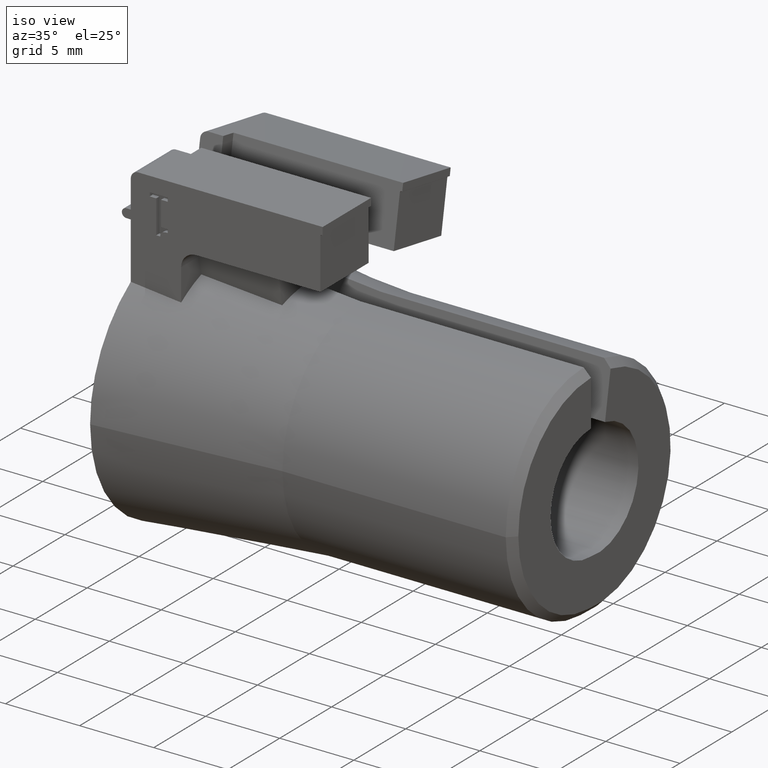
[diagram: clean part render]
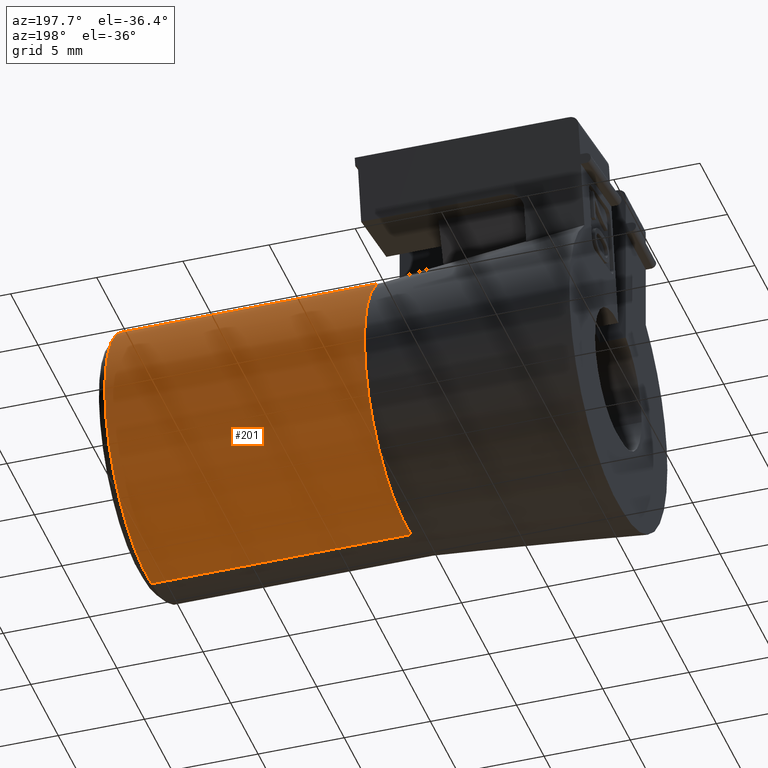
[diagram: tour spotlight — one face highlighted and labeled with its STEP entity id]
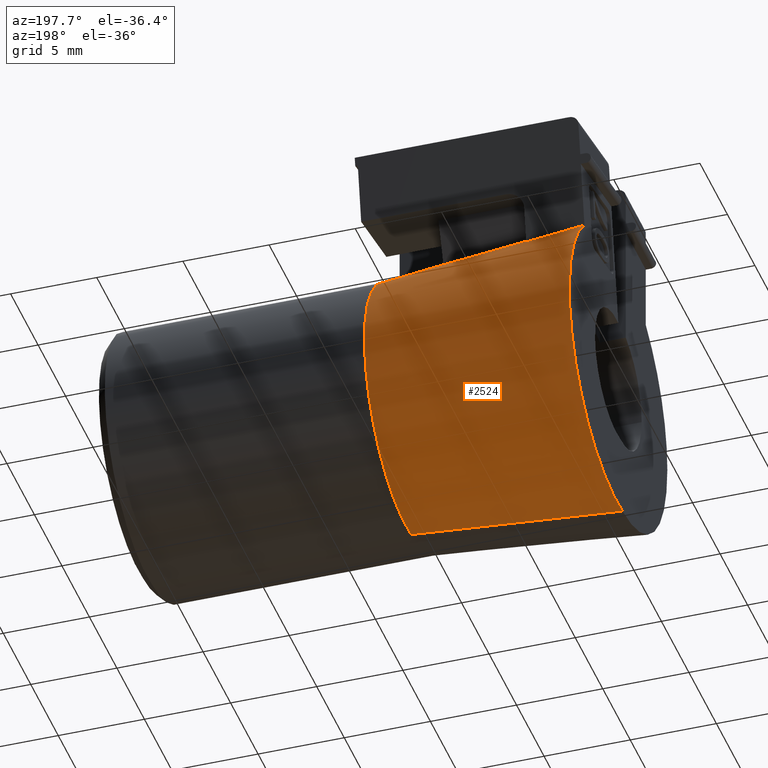
[diagram: tour spotlight — one face highlighted and labeled with its STEP entity id]
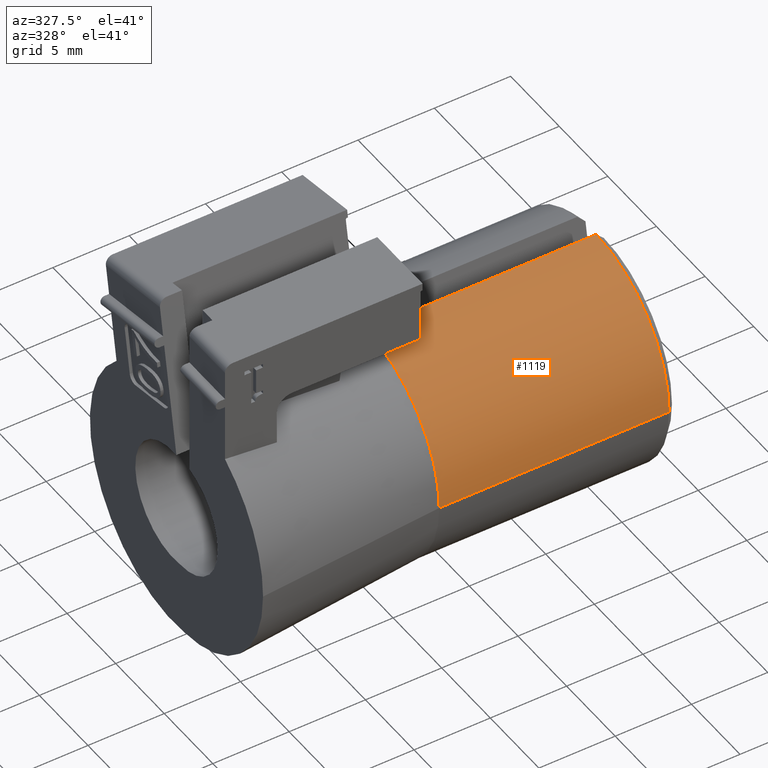
[diagram: tour spotlight — one face highlighted and labeled with its STEP entity id]
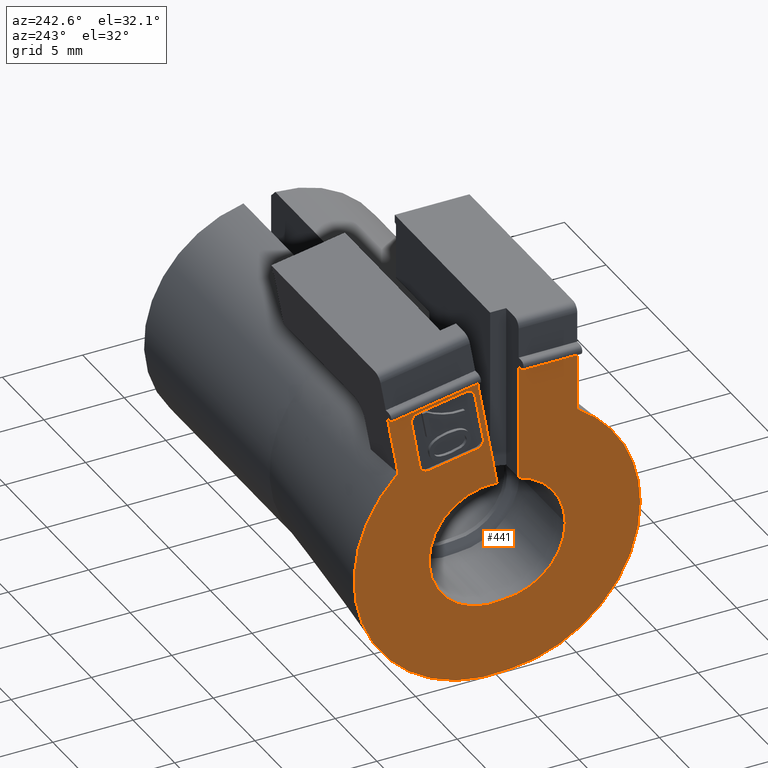
[diagram: tour spotlight — one face highlighted and labeled with its STEP entity id]
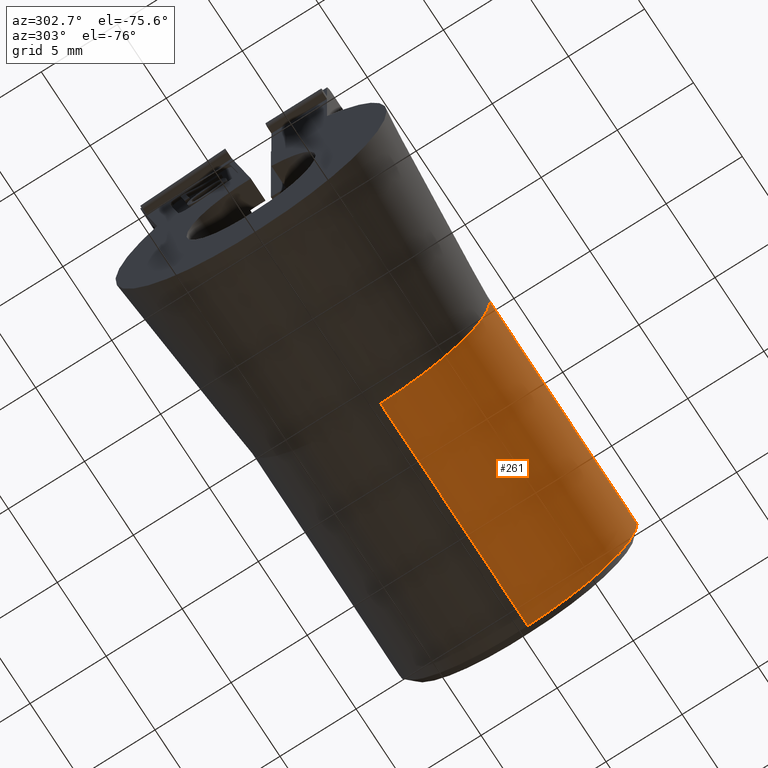
[diagram: tour spotlight — one face highlighted and labeled with its STEP entity id]
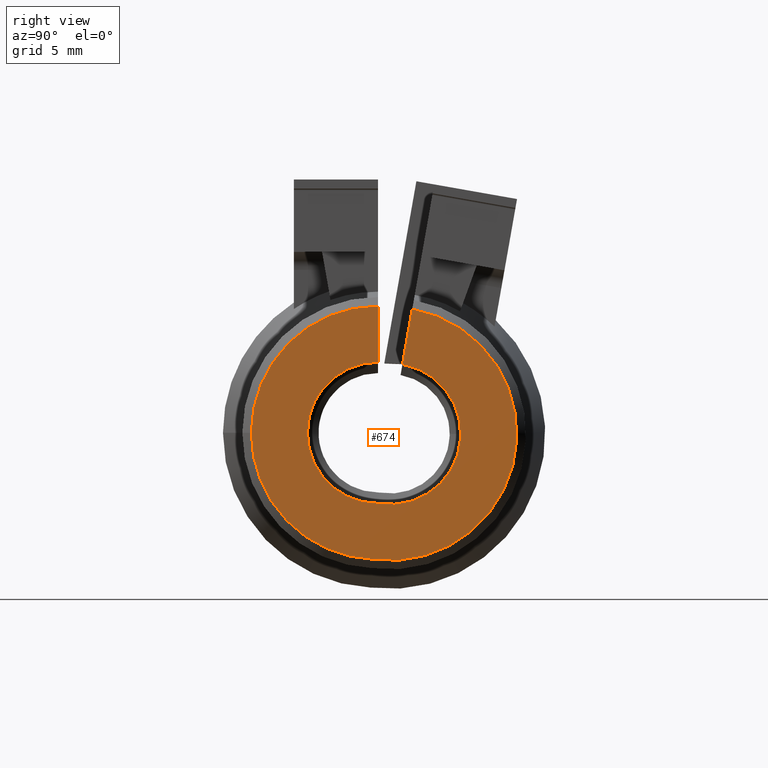
[diagram: tour spotlight — one face highlighted and labeled with its STEP entity id]
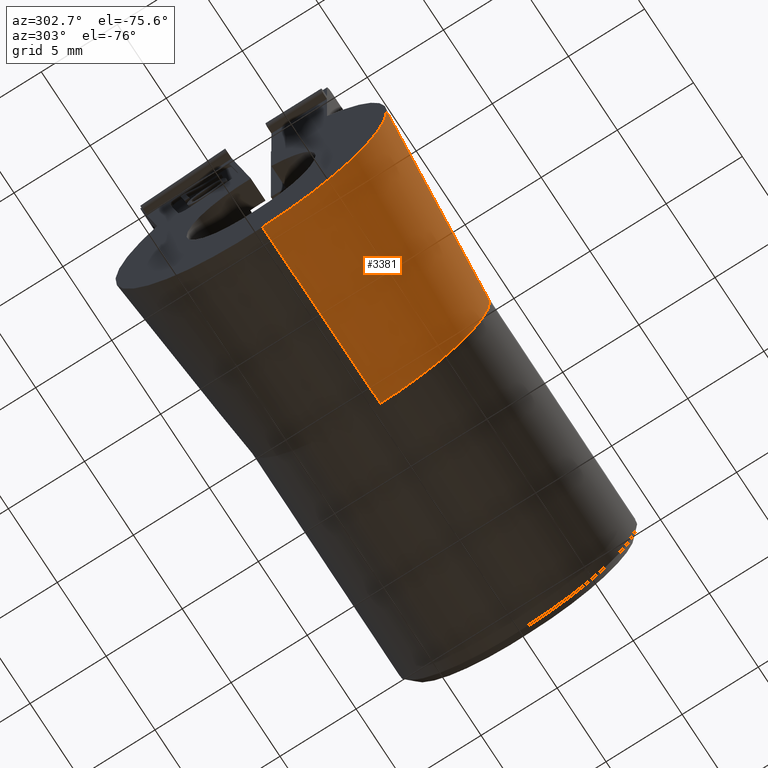
[diagram: tour spotlight — one face highlighted and labeled with its STEP entity id]
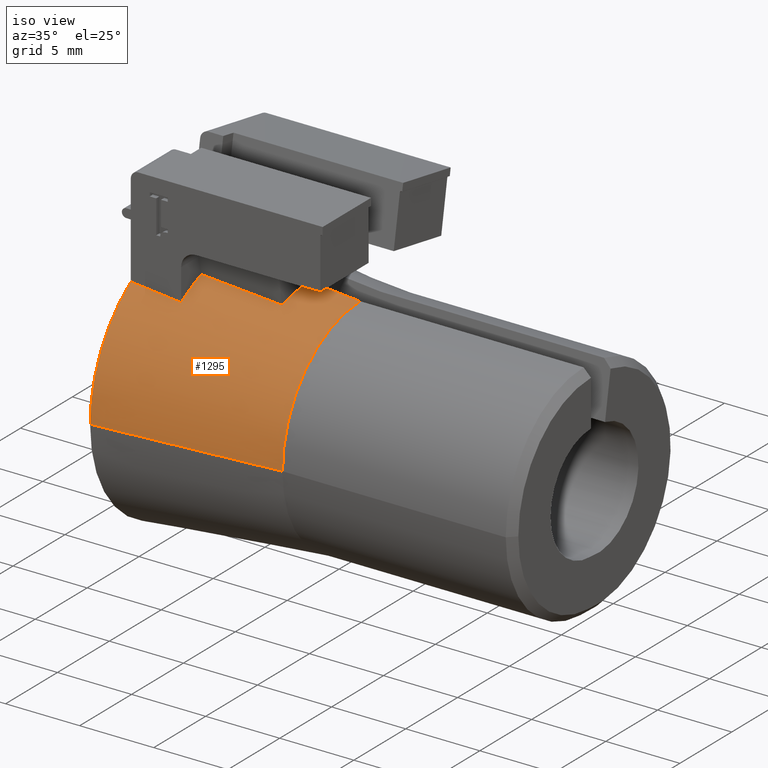
[diagram: tour spotlight — one face highlighted and labeled with its STEP entity id]
A machine part: a face-by-face anatomy tour. The part has 107 B-rep faces; the first image is the clean iso view, then the 8 largest visible faces are spotlighted one at a time (largest first), each with its STEP entity span.

Face 1 — auxiliary view, entity #201. In plain terms, the highlighted cylindrical surface (partial cylindrical patch) has radius 7.5 mm, axis along (-1, 0, -0).
Definition (entity closure, byte-faithful):
#4 = AXIS2_PLACEMENT_3D ( 'NONE', #1879, #1360, #2464 ) ;
#31 = LINE ( 'NONE', #2605, #307 ) ;
#201 = ADVANCED_FACE ( 'NONE', ( #1934 ), #3347, .T. ) ;
#307 = VECTOR ( 'NONE', #1803, 39.37007874015748143 ) ;
#317 = EDGE_CURVE ( 'NONE', #1988, #720, #3053, .T. ) ;
#422 = ORIENTED_EDGE ( 'NONE', *, *, #658, .F. ) ;
#461 = ORIENTED_EDGE ( 'NONE', *, *, #2062, .T. ) ;
#603 = CARTESIAN_POINT ( 'NONE',  ( 0.4500020591644822709, 0.07793658367858238845, 0.2884570230128504220 ) ) ;
#622 = DIRECTION ( 'NONE',  ( 1.000000000000000000, -2.508281999999999843E-15, -0.0000000000000000000 ) ) ;
#649 = DIRECTION ( 'NONE',  ( 1.000000000000000000, -2.511181000000000129E-15, 3.330658000000000231E-16 ) ) ;
#658 = EDGE_CURVE ( 'NONE', #1988, #3115, #2209, .T. ) ;
#720 = VERTEX_POINT ( 'NONE', #603 ) ;
#1116 = CARTESIAN_POINT ( 'NONE',  ( 0.7564970925740386321, 0.02666251546854256013, -0.002332667844582126098 ) ) ;
#1139 = ORIENTED_EDGE ( 'NONE', *, *, #317, .T. ) ;
#1251 = CARTESIAN_POINT ( 'NONE',  ( 1.043307086608647571, 0.07793658367651515317, 0.2884570230011356817 ) ) ;
#1360 = DIRECTION ( 'NONE',  ( -1.000000000000000000, 2.511181000000000129E-15, -3.330658000000000231E-16 ) ) ;
#1389 = AXIS2_PLACEMENT_3D ( 'NONE', #3080, #649, #1740 ) ;
#1565 = CIRCLE ( 'NONE', #4, 0.2952755905511857404 ) ;
#1653 = CARTESIAN_POINT ( 'NONE',  ( 0.7564970925740385210, -0.01237726238810355969, -0.2950160635476101745 ) ) ;
#1740 = DIRECTION ( 'NONE',  ( -2.544261098099276971E-15, -1.000000000000000000, 0.0000000000000000000 ) ) ;
#1803 = DIRECTION ( 'NONE',  ( 1.000000000000000000, -2.511181000000000129E-15, 3.330658000000000231E-16 ) ) ;
#1879 = CARTESIAN_POINT ( 'NONE',  ( 1.043307086614170709, 0.02666251546854183849, -0.002332667844582030255 ) ) ;
#1934 = FACE_OUTER_BOUND ( 'NONE', #3213, .T. ) ;
#1988 = VERTEX_POINT ( 'NONE', #2805 ) ;
#2023 = VECTOR ( 'NONE', #622, 39.37007874015748143 ) ;
#2062 = EDGE_CURVE ( 'NONE', #720, #3196, #31, .T. ) ;
#2209 = LINE ( 'NONE', #1653, #2023 ) ;
#2307 = AXIS2_PLACEMENT_3D ( 'NONE', #1116, #3039, #2510 ) ;
#2464 = DIRECTION ( 'NONE',  ( -2.312964634635706373E-15, -1.000000000000000000, 0.0000000000000000000 ) ) ;
#2510 = DIRECTION ( 'NONE',  ( -2.312964634635706373E-15, -1.000000000000000000, 0.0000000000000000000 ) ) ;
#2605 = CARTESIAN_POINT ( 'NONE',  ( 0.7564970925740386321, 0.07793658367728269198, 0.2884570230054838702 ) ) ;
#2805 = CARTESIAN_POINT ( 'NONE',  ( 0.4500020591645640389, -0.01237726238808563653, -0.2950160635532490527 ) ) ;
#2928 = CARTESIAN_POINT ( 'NONE',  ( 1.043307086609640333, -0.01237726238772718021, -0.2950160635433192735 ) ) ;
#3039 = DIRECTION ( 'NONE',  ( -1.000000000000000000, 2.511181000000000129E-15, -3.330658000000000231E-16 ) ) ;
#3053 = CIRCLE ( 'NONE', #1389, 0.2952755905511857404 ) ;
#3080 = CARTESIAN_POINT ( 'NONE',  ( 0.4500020591638277945, 0.02666251546854332688, -0.002332667844582228013 ) ) ;
#3115 = VERTEX_POINT ( 'NONE', #2928 ) ;
#3157 = ORIENTED_EDGE ( 'NONE', *, *, #3250, .T. ) ;
#3196 = VERTEX_POINT ( 'NONE', #1251 ) ;
#3213 = EDGE_LOOP ( 'NONE', ( #461, #3157, #422, #1139 ) ) ;
#3250 = EDGE_CURVE ( 'NONE', #3196, #3115, #1565, .T. ) ;
#3347 = CYLINDRICAL_SURFACE ( 'NONE', #2307, 0.2952755905511857404 ) ;

Face 2 — auxiliary view, entity #2524. In plain terms, the highlighted conical surface has half-angle 5 deg.
Definition (entity closure, byte-faithful):
#37 = CARTESIAN_POINT ( 'NONE',  ( 0.3002020775148865339, -0.01352068303026450827, -0.3080854212954754479 ) ) ;
#54 = CARTESIAN_POINT ( 'NONE',  ( 0.2250010295819124539, 0.08135485489119993752, 0.3078430023954877859 ) ) ;
#308 = DIRECTION ( 'NONE',  ( -2.315159948026768915E-15, -1.000000000000000000, 0.0000000000000000000 ) ) ;
#317 = EDGE_CURVE ( 'NONE', #1988, #720, #3053, .T. ) ;
#355 = DIRECTION ( 'NONE',  ( -2.315159948026768915E-15, -1.000000000000000000, 0.0000000000000000000 ) ) ;
#390 = CARTESIAN_POINT ( 'NONE',  ( -0.03149606299482801686, 0.2561667989753390051, 0.2449877024713418561 ) ) ;
#497 = EDGE_LOOP ( 'NONE', ( #1224, #2900, #3167, #3533, #634, #2368, #3023, #3134 ) ) ;
#603 = CARTESIAN_POINT ( 'NONE',  ( 0.4500020591644822709, 0.07793658367858238845, 0.2884570230128504220 ) ) ;
#626 = DIRECTION ( 'NONE',  ( 1.000000000000000000, -2.317349101800703050E-15, 2.994175218052257406E-16 ) ) ;
#634 = ORIENTED_EDGE ( 'NONE', *, *, #3532, .T. ) ;
#637 = CARTESIAN_POINT ( 'NONE',  ( 0.3149606299216522465, 0.1786957939132123863, 0.2644823688380555371 ) ) ;
#649 = DIRECTION ( 'NONE',  ( 1.000000000000000000, -2.511181000000000129E-15, 3.330658000000000231E-16 ) ) ;
#675 = CARTESIAN_POINT ( 'NONE',  ( -0.02099718095212104590, 0.2559769154382098844, 0.2439108194014697750 ) ) ;
#705 = B_SPLINE_CURVE_WITH_KNOTS ( 'NONE', 3,
 ( #925, #2024, #1245, #637 ),
 .UNSPECIFIED., .F., .F.,
 ( 4, 4 ),
 ( 1.399620579819333050E-14, 0.005421190361285683004 ),
 .UNSPECIFIED. ) ;
#714 = CARTESIAN_POINT ( 'NONE',  ( -0.03149606299482801686, 0.2561667989753390051, 0.2449877024713418561 ) ) ;
#720 = VERTEX_POINT ( 'NONE', #603 ) ;
#835 = CARTESIAN_POINT ( 'NONE',  ( 0.1397027034615005991, -0.01474561456519745718, -0.3220864527992972071 ) ) ;
#878 = EDGE_CURVE ( 'NONE', #1620, #1988, #961, .T. ) ;
#925 = CARTESIAN_POINT ( 'NONE',  ( 0.1023622047238583466, 0.1851437885384206727, 0.2821980884715800109 ) ) ;
#935 = AXIS2_PLACEMENT_3D ( 'NONE', #2166, #1897, #3255 ) ;
#961 = B_SPLINE_CURVE_WITH_KNOTS ( 'NONE', 3,
 ( #3544, #835, #37, #3531 ),
 .UNSPECIFIED., .F., .F.,
 ( 4, 4 ),
 ( 0.0000000000000000000, 1.000000000000000000 ),
 .UNSPECIFIED. ) ;
#1001 = CARTESIAN_POINT ( 'NONE',  ( 0.1023622047238718497, 0.2537273873260268431, 0.2311531115340348941 ) ) ;
#1022 = VERTEX_POINT ( 'NONE', #1682 ) ;
#1224 = ORIENTED_EDGE ( 'NONE', *, *, #2618, .T. ) ;
#1245 = CARTESIAN_POINT ( 'NONE',  ( 0.2440949468777523779, 0.1808468938393149872, 0.2703924673120127742 ) ) ;
#1280 = CIRCLE ( 'NONE', #1870, 0.3256901367922059864 ) ;
#1339 = AXIS2_PLACEMENT_3D ( 'NONE', #2046, #626, #355 ) ;
#1389 = AXIS2_PLACEMENT_3D ( 'NONE', #3080, #649, #1740 ) ;
#1394 = EDGE_CURVE ( 'NONE', #3464, #3434, #1753, .T. ) ;
#1400 = CARTESIAN_POINT ( 'NONE',  ( 0.1023622047233366111, 0.02666251546854420812, -0.002332667844582364623 ) ) ;
#1539 = VERTEX_POINT ( 'NONE', #390 ) ;
#1555 = B_SPLINE_CURVE_WITH_KNOTS ( 'NONE', 3,
 ( #714, #675, #2081, #2063, #3445, #3392, #1001 ),
 .UNSPECIFIED., .F., .F.,
 ( 4, 3, 4 ),
 ( -0.0008043422325121787723, 6.145691594516833334E-15, 0.002614330102261178471 ),
 .UNSPECIFIED. ) ;
#1620 = VERTEX_POINT ( 'NONE', #1956 ) ;
#1682 = CARTESIAN_POINT ( 'NONE',  ( 0.1023622047238718497, 0.2537273873260268431, 0.2311531115340348941 ) ) ;
#1683 = VERTEX_POINT ( 'NONE', #3433 ) ;
#1732 = CARTESIAN_POINT ( 'NONE',  ( 0.3149606299216521355, 0.07998816642548529920, 0.3000921269468003194 ) ) ;
#1740 = DIRECTION ( 'NONE',  ( -2.544261098099276971E-15, -1.000000000000000000, 0.0000000000000000000 ) ) ;
#1753 = CIRCLE ( 'NONE', #935, 0.3070901847252211492 ) ;
#1759 = VECTOR ( 'NONE', #2756, 39.37007874015748143 ) ;
#1870 = AXIS2_PLACEMENT_3D ( 'NONE', #1400, #2233, #2504 ) ;
#1897 = DIRECTION ( 'NONE',  ( 1.000000000000000000, -2.317349101800703050E-15, 2.994175218052257406E-16 ) ) ;
#1948 = DIRECTION ( 'NONE',  ( -1.000000000000000000, 2.317349101800703050E-15, -2.994175218052257406E-16 ) ) ;
#1956 = CARTESIAN_POINT ( 'NONE',  ( -0.03149606299436653184, -0.01605205702868781059, -0.3370191584855280476 ) ) ;
#1988 = VERTEX_POINT ( 'NONE', #2805 ) ;
#2024 = CARTESIAN_POINT ( 'NONE',  ( 0.1732287779146115814, 0.1829961217416760100, 0.2762974224368768272 ) ) ;
#2046 = CARTESIAN_POINT ( 'NONE',  ( -0.03149606299436644857, 0.02666251546854452037, -0.002332667844582404955 ) ) ;
#2056 = EDGE_CURVE ( 'NONE', #1022, #1683, #1280, .T. ) ;
#2063 = CARTESIAN_POINT ( 'NONE',  ( -2.874228060697331970E-12, 0.2555961769654212512, 0.2417515442486624921 ) ) ;
#2081 = CARTESIAN_POINT ( 'NONE',  ( -0.01049849067836212090, 0.2557867118771957049, 0.2428321214298113095 ) ) ;
#2124 = EDGE_CURVE ( 'NONE', #1620, #1539, #2895, .T. ) ;
#2166 = CARTESIAN_POINT ( 'NONE',  ( 0.3149606299220441552, 0.02666251546854371546, -0.002332667844582300871 ) ) ;
#2233 = DIRECTION ( 'NONE',  ( 1.000000000000000000, -2.317349101800703050E-15, 2.994175218052257406E-16 ) ) ;
#2368 = ORIENTED_EDGE ( 'NONE', *, *, #2056, .T. ) ;
#2504 = DIRECTION ( 'NONE',  ( -2.306665487806846474E-15, -1.000000000000000000, 0.0000000000000000000 ) ) ;
#2524 = ADVANCED_FACE ( 'NONE', ( #3078 ), #3182, .T. ) ;
#2525 = LINE ( 'NONE', #54, #1759 ) ;
#2618 = EDGE_CURVE ( 'NONE', #3434, #720, #2525, .T. ) ;
#2660 = EDGE_CURVE ( 'NONE', #1683, #3464, #705, .T. ) ;
#2756 = DIRECTION ( 'NONE',  ( 0.9961946981004381474, -0.01513443588408798848, -0.08583165107958348750 ) ) ;
#2805 = CARTESIAN_POINT ( 'NONE',  ( 0.4500020591645640389, -0.01237726238808563653, -0.2950160635532490527 ) ) ;
#2895 = CIRCLE ( 'NONE', #1339, 0.3374012177232704190 ) ;
#2900 = ORIENTED_EDGE ( 'NONE', *, *, #317, .F. ) ;
#3023 = ORIENTED_EDGE ( 'NONE', *, *, #2660, .T. ) ;
#3033 = CARTESIAN_POINT ( 'NONE',  ( 0.3149606299216522465, 0.1786957939132123863, 0.2644823688380555371 ) ) ;
#3053 = CIRCLE ( 'NONE', #1389, 0.2952755905511857404 ) ;
#3078 = FACE_OUTER_BOUND ( 'NONE', #497, .T. ) ;
#3080 = CARTESIAN_POINT ( 'NONE',  ( 0.4500020591638277945, 0.02666251546854332688, -0.002332667844582228013 ) ) ;
#3134 = ORIENTED_EDGE ( 'NONE', *, *, #1394, .T. ) ;
#3167 = ORIENTED_EDGE ( 'NONE', *, *, #878, .F. ) ;
#3182 = CONICAL_SURFACE ( 'NONE', #3528, 0.3374012177232704190, 0.08726646249997974114 ) ;
#3255 = DIRECTION ( 'NONE',  ( -2.223978597776311308E-15, -1.000000000000000000, -2.664430609132791872E-15 ) ) ;
#3294 = CARTESIAN_POINT ( 'NONE',  ( -0.03149606299436672613, 0.02666251546854452037, -0.002332667844582404955 ) ) ;
#3392 = CARTESIAN_POINT ( 'NONE',  ( 0.06824376824661870788, 0.2543541018020432642, 0.2347073859479577862 ) ) ;
#3433 = CARTESIAN_POINT ( 'NONE',  ( 0.1023622047238583466, 0.1851437885384206727, 0.2821980884715800109 ) ) ;
#3434 = VERTEX_POINT ( 'NONE', #1732 ) ;
#3445 = CARTESIAN_POINT ( 'NONE',  ( 0.03412293219606513800, 0.2549768870048947922, 0.2382393763544571330 ) ) ;
#3464 = VERTEX_POINT ( 'NONE', #3033 ) ;
#3528 = AXIS2_PLACEMENT_3D ( 'NONE', #3294, #1948, #308 ) ;
#3531 = CARTESIAN_POINT ( 'NONE',  ( 0.4500020591645640389, -0.01237726238808563653, -0.2950160635532490527 ) ) ;
#3532 = EDGE_CURVE ( 'NONE', #1539, #1022, #1555, .T. ) ;
#3533 = ORIENTED_EDGE ( 'NONE', *, *, #2124, .T. ) ;
#3544 = CARTESIAN_POINT ( 'NONE',  ( -0.03149606299436653184, -0.01605205702868781059, -0.3370191584855280476 ) ) ;

Face 3 — auxiliary view, entity #1119. In plain terms, the highlighted cylindrical surface (partial cylindrical patch) has radius 7.5 mm, axis along (-1, 0, 0).
Definition (entity closure, byte-faithful):
#193 = AXIS2_PLACEMENT_3D ( 'NONE', #851, #1407, #3057 ) ;
#342 = FACE_OUTER_BOUND ( 'NONE', #2903, .T. ) ;
#399 = LINE ( 'NONE', #858, #3351 ) ;
#502 = VERTEX_POINT ( 'NONE', #1861 ) ;
#511 = EDGE_CURVE ( 'NONE', #502, #2149, #2599, .T. ) ;
#598 = CYLINDRICAL_SURFACE ( 'NONE', #879, 0.2952755905511856849 ) ;
#742 = ORIENTED_EDGE ( 'NONE', *, *, #1613, .F. ) ;
#818 = VECTOR ( 'NONE', #3082, 39.37007874015748143 ) ;
#851 = CARTESIAN_POINT ( 'NONE',  ( 1.043307086614170709, -2.616908219486719056E-15, 0.0000000000000000000 ) ) ;
#858 = CARTESIAN_POINT ( 'NONE',  ( 0.7564970925740378549, -0.2952755905511876278, 0.0000000000000000000 ) ) ;
#859 = VERTEX_POINT ( 'NONE', #1886 ) ;
#864 = ORIENTED_EDGE ( 'NONE', *, *, #1061, .T. ) ;
#879 = AXIS2_PLACEMENT_3D ( 'NONE', #2544, #2564, #1706 ) ;
#932 = CARTESIAN_POINT ( 'NONE',  ( 1.043307086614170043, -0.2952755905335221476, -2.043064705962473039E-27 ) ) ;
#986 = ORIENTED_EDGE ( 'NONE', *, *, #511, .T. ) ;
#1061 = EDGE_CURVE ( 'NONE', #859, #502, #1148, .T. ) ;
#1119 = ADVANCED_FACE ( 'NONE', ( #342 ), #598, .T. ) ;
#1148 = LINE ( 'NONE', #1723, #818 ) ;
#1286 = CIRCLE ( 'NONE', #193, 0.2952755905511856849 ) ;
#1407 = DIRECTION ( 'NONE',  ( -1.000000000000000000, 2.508281999999999843E-15, 0.0000000000000000000 ) ) ;
#1593 = DIRECTION ( 'NONE',  ( 1.000000000000000000, -2.508281999999999843E-15, -0.0000000000000000000 ) ) ;
#1613 = EDGE_CURVE ( 'NONE', #1701, #2149, #399, .T. ) ;
#1701 = VERTEX_POINT ( 'NONE', #932 ) ;
#1706 = DIRECTION ( 'NONE',  ( -2.312964634635706768E-15, -1.000000000000000000, 0.0000000000000000000 ) ) ;
#1723 = CARTESIAN_POINT ( 'NONE',  ( 0.7564970925740385210, -1.915588289357490882E-15, 0.2952755905511856849 ) ) ;
#1734 = CARTESIAN_POINT ( 'NONE',  ( 0.4500020591638270173, -0.2952755905737994846, 0.0000000000000000000 ) ) ;
#1861 = CARTESIAN_POINT ( 'NONE',  ( 0.4500020591658233093, -1.146812589562191781E-15, 0.2952755905736237918 ) ) ;
#1882 = CARTESIAN_POINT ( 'NONE',  ( 0.4500020591638277945, -1.128731898623518140E-15, 0.0000000000000000000 ) ) ;
#1886 = CARTESIAN_POINT ( 'NONE',  ( 1.043307086609754020, -1.992093704936186790E-15, 0.2952755905467691622 ) ) ;
#2149 = VERTEX_POINT ( 'NONE', #1734 ) ;
#2160 = ORIENTED_EDGE ( 'NONE', *, *, #2513, .T. ) ;
#2513 = EDGE_CURVE ( 'NONE', #1701, #859, #1286, .T. ) ;
#2544 = CARTESIAN_POINT ( 'NONE',  ( 0.7564970925740385210, -1.897507874015748041E-15, 0.0000000000000000000 ) ) ;
#2564 = DIRECTION ( 'NONE',  ( -1.000000000000000000, 2.508281999999999843E-15, 0.0000000000000000000 ) ) ;
#2599 = CIRCLE ( 'NONE', #3228, 0.2952755905511856849 ) ;
#2764 = DIRECTION ( 'NONE',  ( -1.000000000000000000, 2.508281999999999843E-15, 0.0000000000000000000 ) ) ;
#2903 = EDGE_LOOP ( 'NONE', ( #742, #2160, #864, #986 ) ) ;
#3057 = DIRECTION ( 'NONE',  ( -2.312964634635706768E-15, -1.000000000000000000, 0.0000000000000000000 ) ) ;
#3082 = DIRECTION ( 'NONE',  ( -1.000000000000000000, 2.508281999999999843E-15, 0.0000000000000000000 ) ) ;
#3228 = AXIS2_PLACEMENT_3D ( 'NONE', #1882, #1593, #3506 ) ;
#3351 = VECTOR ( 'NONE', #2764, 39.37007874015748143 ) ;
#3506 = DIRECTION ( 'NONE',  ( -2.544261098099277366E-15, -1.000000000000000000, 0.0000000000000000000 ) ) ;

Face 4 — auxiliary view, entity #441. In plain terms, the highlighted planar face has unit normal (1, -0, 0).
Definition (entity closure, byte-faithful):
#6 = CARTESIAN_POINT ( 'NONE',  ( -0.03149606299212889815, 0.2821540905017325129, 0.3923689564460892676 ) ) ;
#154 = EDGE_CURVE ( 'NONE', #2871, #970, #2522, .T. ) ;
#160 = DIRECTION ( 'NONE',  ( 1.000000000000000000, -2.517578304138399501E-15, -0.0000000000000000000 ) ) ;
#176 = CARTESIAN_POINT ( 'NONE',  ( -0.03149606299214025018, -0.1535433070866140948, 0.0000000000000000000 ) ) ;
#181 = ORIENTED_EDGE ( 'NONE', *, *, #1713, .F. ) ;
#189 = VERTEX_POINT ( 'NONE', #3008 ) ;
#199 = ORIENTED_EDGE ( 'NONE', *, *, #1566, .F. ) ;
#206 = ORIENTED_EDGE ( 'NONE', *, *, #2189, .F. ) ;
#230 = CARTESIAN_POINT ( 'NONE',  ( -0.03149606299212848876, 0.2070076955448026113, 0.3856305805475748749 ) ) ;
#254 = AXIS2_PLACEMENT_3D ( 'NONE', #2410, #2657, #1249 ) ;
#280 = ORIENTED_EDGE ( 'NONE', *, *, #1449, .F. ) ;
#292 = CARTESIAN_POINT ( 'NONE',  ( -0.03149606299212879407, 0.2821540905017327905, 0.3923689564460891011 ) ) ;
#336 = DIRECTION ( 'NONE',  ( 0.0000000000000000000, 0.9848077530122077983, -0.1736481776669311083 ) ) ;
#348 = EDGE_CURVE ( 'NONE', #1539, #2992, #1187, .T. ) ;
#355 = DIRECTION ( 'NONE',  ( -2.315159948026768915E-15, -1.000000000000000000, 0.0000000000000000000 ) ) ;
#366 = ORIENTED_EDGE ( 'NONE', *, *, #3119, .F. ) ;
#390 = CARTESIAN_POINT ( 'NONE',  ( -0.03149606299482801686, 0.2561667989753390051, 0.2449877024713418561 ) ) ;
#419 = LINE ( 'NONE', #1278, #2777 ) ;
#436 = VERTEX_POINT ( 'NONE', #230 ) ;
#441 = ADVANCED_FACE ( 'NONE', ( #3165, #3491 ), #2382, .F. ) ;
#442 = CARTESIAN_POINT ( 'NONE',  ( -0.03149606299212889815, -0.03937007874015741732, -4.127885826771654090E-17 ) ) ;
#445 = CARTESIAN_POINT ( 'NONE',  ( -0.03149606299212865529, 0.06334564949345038165, 0.2510523727110378078 ) ) ;
#455 = ORIENTED_EDGE ( 'NONE', *, *, #920, .F. ) ;
#466 = CARTESIAN_POINT ( 'NONE',  ( -0.03149606299212889815, 0.1796615258334750831, 0.2305427454275421062 ) ) ;
#478 = VECTOR ( 'NONE', #1409, 39.37007874015748143 ) ;
#503 = CARTESIAN_POINT ( 'NONE',  ( -0.03149606299212889815, 0.2229754037208907802, 0.3628263299436547129 ) ) ;
#513 = DIRECTION ( 'NONE',  ( -2.517578304138399107E-15, -1.000000000000000000, 0.0000000000000000000 ) ) ;
#522 = CARTESIAN_POINT ( 'NONE',  ( -0.03149606299213445620, -0.03937007874015739650, 0.1484100537399272723 ) ) ;
#527 = CARTESIAN_POINT ( 'NONE',  ( -0.03149606299212852345, 0.1796615258334750553, 0.2305427454275421062 ) ) ;
#561 = CARTESIAN_POINT ( 'NONE',  ( -0.03149606299212808630, 0.2035894243308866980, 0.3662446011575707372 ) ) ;
#574 = ORIENTED_EDGE ( 'NONE', *, *, #3155, .F. ) ;
#584 = CARTESIAN_POINT ( 'NONE',  ( -0.03149606299212896060, -0.1830708661417325689, 0.4330708661417319028 ) ) ;
#601 = VERTEX_POINT ( 'NONE', #522 ) ;
#619 = ORIENTED_EDGE ( 'NONE', *, *, #3227, .F. ) ;
#626 = DIRECTION ( 'NONE',  ( 1.000000000000000000, -2.317349101800703050E-15, 2.994175218052257406E-16 ) ) ;
#631 = CARTESIAN_POINT ( 'NONE',  ( -0.03149606299212889815, 0.2561667989806182266, 0.2449877025012815734 ) ) ;
#653 = VERTEX_POINT ( 'NONE', #1079 ) ;
#695 = DIRECTION ( 'NONE',  ( -1.000000000000000000, 2.508281999999999843E-15, 0.0000000000000000000 ) ) ;
#698 = DIRECTION ( 'NONE',  ( 0.0000000000000000000, 0.0000000000000000000, -1.000000000000000000 ) ) ;
#729 = CARTESIAN_POINT ( 'NONE',  ( -0.03149606299212803079, 0.2232744637009654587, 0.3662446011575707372 ) ) ;
#738 = DIRECTION ( 'NONE',  ( 2.818925648462311923E-15, 1.000000000000000000, 0.0000000000000000000 ) ) ;
#741 = LINE ( 'NONE', #2220, #882 ) ;
#746 = CARTESIAN_POINT ( 'NONE',  ( -0.03149606299212849569, 0.2024657764373950508, 0.2465104536036302196 ) ) ;
#774 = AXIS2_PLACEMENT_3D ( 'NONE', #945, #2043, #2870 ) ;
#786 = EDGE_CURVE ( 'NONE', #2593, #3470, #419, .T. ) ;
#812 = CIRCLE ( 'NONE', #1207, 0.01968503937007875029 ) ;
#868 = EDGE_CURVE ( 'NONE', #1567, #653, #1901, .T. ) ;
#882 = VECTOR ( 'NONE', #3309, 39.37007874015748854 ) ;
#899 = CARTESIAN_POINT ( 'NONE',  ( -0.03149606299436744777, -0.3374012177232703635, 0.0000000000000000000 ) ) ;
#920 = EDGE_CURVE ( 'NONE', #2143, #1620, #2265, .T. ) ;
#945 = CARTESIAN_POINT ( 'NONE',  ( -0.03149606299212808630, 0.2035894243308866980, 0.3662446011575707372 ) ) ;
#948 = VERTEX_POINT ( 'NONE', #527 ) ;
#965 = DIRECTION ( 'NONE',  ( 0.0000000000000000000, -0.9848077530122080203, 0.1736481776669303589 ) ) ;
#969 = DIRECTION ( 'NONE',  ( -1.000000000000000000, 2.775558000000000046E-15, -0.0000000000000000000 ) ) ;
#970 = VERTEX_POINT ( 'NONE', #3561 ) ;
#997 = AXIS2_PLACEMENT_3D ( 'NONE', #1893, #1548, #738 ) ;
#1004 = CARTESIAN_POINT ( 'NONE',  ( -0.03149606299213986160, 7.900155905514577486E-17, 0.0000000000000000000 ) ) ;
#1030 = EDGE_LOOP ( 'NONE', ( #2237, #1303, #3042, #1894, #2937, #619, #1761, #2512, #280 ) ) ;
#1033 = DIRECTION ( 'NONE',  ( 2.818925648462310345E-15, 1.000000000000000000, 1.734723475976806306E-15 ) ) ;
#1079 = CARTESIAN_POINT ( 'NONE',  ( -0.03149606299482877320, -0.1830708661417325689, 0.2834160187626817429 ) ) ;
#1084 = ORIENTED_EDGE ( 'NONE', *, *, #348, .F. ) ;
#1101 = CIRCLE ( 'NONE', #1573, 0.01968503937007875723 ) ;
#1175 = EDGE_CURVE ( 'NONE', #2896, #948, #1101, .T. ) ;
#1187 = LINE ( 'NONE', #631, #2140 ) ;
#1207 = AXIS2_PLACEMENT_3D ( 'NONE', #1908, #2678, #1033 ) ;
#1214 = DIRECTION ( 'NONE',  ( -2.502005013428087277E-15, -1.000000000000000000, 0.0000000000000000000 ) ) ;
#1221 = ORIENTED_EDGE ( 'NONE', *, *, #2124, .F. ) ;
#1249 = DIRECTION ( 'NONE',  ( -2.502005013428086882E-15, -1.000000000000000000, 0.0000000000000000000 ) ) ;
#1278 = CARTESIAN_POINT ( 'NONE',  ( -0.03149606299212889815, 0.04737794131736225434, 0.2738566233149578588 ) ) ;
#1303 = ORIENTED_EDGE ( 'NONE', *, *, #786, .F. ) ;
#1312 = EDGE_CURVE ( 'NONE', #3280, #1511, #741, .T. ) ;
#1326 = DIRECTION ( 'NONE',  ( 1.000000000000000000, -0.0000000000000000000, 0.0000000000000000000 ) ) ;
#1339 = AXIS2_PLACEMENT_3D ( 'NONE', #2046, #626, #355 ) ;
#1384 = CARTESIAN_POINT ( 'NONE',  ( -0.03149606299212868304, 0.04737794131736225434, 0.2738566233149578588 ) ) ;
#1409 = DIRECTION ( 'NONE',  ( 0.0000000000000000000, 0.0000000000000000000, -1.000000000000000000 ) ) ;
#1421 = LINE ( 'NONE', #1998, #3007 ) ;
#1446 = VECTOR ( 'NONE', #965, 39.37007874015748854 ) ;
#1449 = EDGE_CURVE ( 'NONE', #189, #436, #1421, .T. ) ;
#1511 = VERTEX_POINT ( 'NONE', #2289 ) ;
#1530 = EDGE_CURVE ( 'NONE', #1839, #601, #3232, .T. ) ;
#1534 = CARTESIAN_POINT ( 'NONE',  ( -0.03149606299212814181, 0.1830797970473909686, 0.2499287248175461884 ) ) ;
#1539 = VERTEX_POINT ( 'NONE', #390 ) ;
#1548 = DIRECTION ( 'NONE',  ( -1.000000000000000000, 2.775558000000000046E-15, -0.0000000000000000000 ) ) ;
#1550 = CARTESIAN_POINT ( 'NONE',  ( -0.03149606299212889815, -0.1289354345684963488, -4.127885826771654090E-17 ) ) ;
#1566 = EDGE_CURVE ( 'NONE', #2992, #3280, #3321, .T. ) ;
#1567 = VERTEX_POINT ( 'NONE', #584 ) ;
#1573 = AXIS2_PLACEMENT_3D ( 'NONE', #1534, #969, #3218 ) ;
#1586 = CIRCLE ( 'NONE', #774, 0.01968503937007875723 ) ;
#1605 = LINE ( 'NONE', #503, #2543 ) ;
#1620 = VERTEX_POINT ( 'NONE', #1956 ) ;
#1651 = ORIENTED_EDGE ( 'NONE', *, *, #2665, .F. ) ;
#1663 = CARTESIAN_POINT ( 'NONE',  ( -0.03149606299212889815, -0.03937007874015741732, 0.4330708661417319028 ) ) ;
#1670 = DIRECTION ( 'NONE',  ( 0.0000000000000000000, -0.9848077530122077983, 0.1736481776669310806 ) ) ;
#1690 = AXIS2_PLACEMENT_3D ( 'NONE', #1758, #1773, #2860 ) ;
#1694 = CARTESIAN_POINT ( 'NONE',  ( -0.03149606299212865529, 0.06788756860085802536, 0.3901724996549824631 ) ) ;
#1713 = EDGE_CURVE ( 'NONE', #2602, #1567, #2626, .T. ) ;
#1724 = VERTEX_POINT ( 'NONE', #2899 ) ;
#1743 = ORIENTED_EDGE ( 'NONE', *, *, #868, .F. ) ;
#1749 = LINE ( 'NONE', #442, #3297 ) ;
#1758 = CARTESIAN_POINT ( 'NONE',  ( -0.03149606299213986160, 7.900155905514577486E-17, 0.0000000000000000000 ) ) ;
#1761 = ORIENTED_EDGE ( 'NONE', *, *, #154, .F. ) ;
#1773 = DIRECTION ( 'NONE',  ( -1.000000000000000000, 2.508281999999999843E-15, 0.0000000000000000000 ) ) ;
#1775 = DIRECTION ( 'NONE',  ( -0.0000000000000000000, -1.000000000000000000, -0.0000000000000000000 ) ) ;
#1820 = EDGE_CURVE ( 'NONE', #3470, #189, #1924, .T. ) ;
#1839 = VERTEX_POINT ( 'NONE', #176 ) ;
#1854 = AXIS2_PLACEMENT_3D ( 'NONE', #1004, #695, #1214 ) ;
#1893 = CARTESIAN_POINT ( 'NONE',  ( -0.03149606299212835692, 0.08727354799086213533, 0.3867542284410665498 ) ) ;
#1894 = ORIENTED_EDGE ( 'NONE', *, *, #3089, .F. ) ;
#1901 = LINE ( 'NONE', #2441, #478 ) ;
#1908 = CARTESIAN_POINT ( 'NONE',  ( -0.03149606299212841243, 0.06676392070736633655, 0.2704383521010418900 ) ) ;
#1924 = CIRCLE ( 'NONE', #997, 0.01968503937007873988 ) ;
#1926 = CIRCLE ( 'NONE', #254, 0.1535433070866142058 ) ;
#1949 = DIRECTION ( 'NONE',  ( -1.000000000000000000, 2.775558000000000046E-15, -0.0000000000000000000 ) ) ;
#1956 = CARTESIAN_POINT ( 'NONE',  ( -0.03149606299436653184, -0.01605205702868781059, -0.3370191584855280476 ) ) ;
#1998 = CARTESIAN_POINT ( 'NONE',  ( -0.03149606299212889815, 0.09069181920477807635, 0.4061402078310706876 ) ) ;
#2031 = VECTOR ( 'NONE', #1775, 39.37007874015748143 ) ;
#2043 = DIRECTION ( 'NONE',  ( -1.000000000000000000, 2.775558000000000046E-15, -0.0000000000000000000 ) ) ;
#2046 = CARTESIAN_POINT ( 'NONE',  ( -0.03149606299436644857, 0.02666251546854452037, -0.002332667844582404955 ) ) ;
#2107 = EDGE_LOOP ( 'NONE', ( #1084, #1221, #455, #574, #1743, #181, #1651, #2117, #366, #206, #3274, #199 ) ) ;
#2117 = ORIENTED_EDGE ( 'NONE', *, *, #1530, .F. ) ;
#2123 = LINE ( 'NONE', #466, #1446 ) ;
#2124 = EDGE_CURVE ( 'NONE', #1620, #1539, #2895, .T. ) ;
#2140 = VECTOR ( 'NONE', #2828, 39.37007874015748143 ) ;
#2143 = VERTEX_POINT ( 'NONE', #899 ) ;
#2150 = VECTOR ( 'NONE', #1670, 39.37007874015748854 ) ;
#2185 = CARTESIAN_POINT ( 'NONE',  ( -0.03149606299436659429, 6.829619984160587788E-17, 0.0000000000000000000 ) ) ;
#2189 = EDGE_CURVE ( 'NONE', #1511, #1724, #1926, .T. ) ;
#2194 = AXIS2_PLACEMENT_3D ( 'NONE', #2625, #160, #3143 ) ;
#2216 = CARTESIAN_POINT ( 'NONE',  ( -0.03149606299212887039, 0.06309252339468732207, 0.4309954211633394427 ) ) ;
#2220 = CARTESIAN_POINT ( 'NONE',  ( -0.03149606299212889815, 0.06309252339468728044, 0.4309954211633394983 ) ) ;
#2237 = ORIENTED_EDGE ( 'NONE', *, *, #1820, .F. ) ;
#2265 = CIRCLE ( 'NONE', #3059, 0.3374012177232704190 ) ;
#2289 = CARTESIAN_POINT ( 'NONE',  ( -0.03149606299212872468, 0.01366169206792586070, 0.1506592461312883380 ) ) ;
#2325 = CARTESIAN_POINT ( 'NONE',  ( -0.03149606299212889815, -0.1289354345684963488, 0.4330708661417320138 ) ) ;
#2367 = DIRECTION ( 'NONE',  ( 0.0000000000000000000, 0.1736481776669307753, 0.9848077530122080203 ) ) ;
#2382 = PLANE ( 'NONE',  #2829 ) ;
#2410 = CARTESIAN_POINT ( 'NONE',  ( -0.03149606299212852345, 0.02666251546854452037, -0.002332667844582411894 ) ) ;
#2441 = CARTESIAN_POINT ( 'NONE',  ( -0.03149606299212889815, -0.1830708661417328464, -4.127885826771654090E-17 ) ) ;
#2512 = ORIENTED_EDGE ( 'NONE', *, *, #2752, .F. ) ;
#2522 = CIRCLE ( 'NONE', #2979, 0.01968503937007875723 ) ;
#2543 = VECTOR ( 'NONE', #2730, 39.37007874015748143 ) ;
#2593 = VERTEX_POINT ( 'NONE', #1384 ) ;
#2602 = VERTEX_POINT ( 'NONE', #1663 ) ;
#2625 = CARTESIAN_POINT ( 'NONE',  ( -0.03149606299436659429, 6.829619984160587788E-17, 0.0000000000000000000 ) ) ;
#2626 = LINE ( 'NONE', #2325, #2031 ) ;
#2651 = CIRCLE ( 'NONE', #1854, 0.1535433070866141780 ) ;
#2657 = DIRECTION ( 'NONE',  ( -1.000000000000000000, 2.511181000000000129E-15, -3.330658000000000231E-16 ) ) ;
#2665 = EDGE_CURVE ( 'NONE', #601, #2602, #1749, .T. ) ;
#2678 = DIRECTION ( 'NONE',  ( -1.000000000000000000, 2.775558000000000046E-15, -0.0000000000000000000 ) ) ;
#2704 = DIRECTION ( 'NONE',  ( 1.000000000000000000, -2.517578304138399501E-15, -0.0000000000000000000 ) ) ;
#2730 = DIRECTION ( 'NONE',  ( 0.0000000000000000000, -0.1736481776669306643, -0.9848077530122080203 ) ) ;
#2752 = EDGE_CURVE ( 'NONE', #436, #2871, #1586, .T. ) ;
#2777 = VECTOR ( 'NONE', #2367, 39.37007874015748854 ) ;
#2828 = DIRECTION ( 'NONE',  ( 0.0000000000000000000, 0.1736481776669226429, 0.9848077530122094636 ) ) ;
#2829 = AXIS2_PLACEMENT_3D ( 'NONE', #1550, #1326, #698 ) ;
#2860 = DIRECTION ( 'NONE',  ( -2.502005013428087277E-15, -1.000000000000000000, 0.0000000000000000000 ) ) ;
#2870 = DIRECTION ( 'NONE',  ( 2.818925648462309162E-15, 1.000000000000000000, 0.0000000000000000000 ) ) ;
#2871 = VERTEX_POINT ( 'NONE', #729 ) ;
#2895 = CIRCLE ( 'NONE', #1339, 0.3374012177232704190 ) ;
#2896 = VERTEX_POINT ( 'NONE', #746 ) ;
#2899 = CARTESIAN_POINT ( 'NONE',  ( -0.03149606299213419253, 1.069599096203871981E-16, -0.1535433070866141780 ) ) ;
#2937 = ORIENTED_EDGE ( 'NONE', *, *, #1175, .F. ) ;
#2979 = AXIS2_PLACEMENT_3D ( 'NONE', #561, #1949, #3560 ) ;
#2992 = VERTEX_POINT ( 'NONE', #292 ) ;
#3007 = VECTOR ( 'NONE', #336, 39.37007874015748854 ) ;
#3008 = CARTESIAN_POINT ( 'NONE',  ( -0.03149606299212862059, 0.09069181920477807635, 0.4061402078310705765 ) ) ;
#3042 = ORIENTED_EDGE ( 'NONE', *, *, #3319, .F. ) ;
#3059 = AXIS2_PLACEMENT_3D ( 'NONE', #2185, #2704, #513 ) ;
#3089 = EDGE_CURVE ( 'NONE', #948, #3549, #2123, .T. ) ;
#3108 = CIRCLE ( 'NONE', #2194, 0.3374012177232704190 ) ;
#3119 = EDGE_CURVE ( 'NONE', #1724, #1839, #2651, .T. ) ;
#3143 = DIRECTION ( 'NONE',  ( -2.517578304138399107E-15, -1.000000000000000000, -8.881784197001252323E-16 ) ) ;
#3155 = EDGE_CURVE ( 'NONE', #653, #2143, #3108, .T. ) ;
#3165 = FACE_BOUND ( 'NONE', #1030, .T. ) ;
#3218 = DIRECTION ( 'NONE',  ( 2.818925648462309162E-15, 1.000000000000000000, 0.0000000000000000000 ) ) ;
#3227 = EDGE_CURVE ( 'NONE', #970, #2896, #1605, .T. ) ;
#3232 = CIRCLE ( 'NONE', #1690, 0.1535433070866141780 ) ;
#3274 = ORIENTED_EDGE ( 'NONE', *, *, #1312, .F. ) ;
#3280 = VERTEX_POINT ( 'NONE', #2216 ) ;
#3297 = VECTOR ( 'NONE', #3374, 39.37007874015748143 ) ;
#3309 = DIRECTION ( 'NONE',  ( 0.0000000000000000000, -0.1736481776669306087, -0.9848077530122080203 ) ) ;
#3319 = EDGE_CURVE ( 'NONE', #3549, #2593, #812, .T. ) ;
#3321 = LINE ( 'NONE', #6, #2150 ) ;
#3374 = DIRECTION ( 'NONE',  ( -0.0000000000000000000, -0.0000000000000000000, 1.000000000000000000 ) ) ;
#3470 = VERTEX_POINT ( 'NONE', #1694 ) ;
#3491 = FACE_OUTER_BOUND ( 'NONE', #2107, .T. ) ;
#3549 = VERTEX_POINT ( 'NONE', #445 ) ;
#3560 = DIRECTION ( 'NONE',  ( 2.818925648462309162E-15, 1.000000000000000000, 0.0000000000000000000 ) ) ;
#3561 = CARTESIAN_POINT ( 'NONE',  ( -0.03149606299212846794, 0.2229754037208908080, 0.3628263299436547684 ) ) ;

Face 5 — auxiliary view, entity #261. In plain terms, the highlighted cylindrical surface (partial cylindrical patch) has radius 7.5 mm, axis along (-1, 0, 0).
Definition (entity closure, byte-faithful):
#58 = ORIENTED_EDGE ( 'NONE', *, *, #1613, .T. ) ;
#122 = AXIS2_PLACEMENT_3D ( 'NONE', #1385, #2203, #2490 ) ;
#261 = ADVANCED_FACE ( 'NONE', ( #1368 ), #2471, .T. ) ;
#399 = LINE ( 'NONE', #858, #3351 ) ;
#481 = CIRCLE ( 'NONE', #2439, 0.2952755905511856849 ) ;
#622 = DIRECTION ( 'NONE',  ( 1.000000000000000000, -2.508281999999999843E-15, -0.0000000000000000000 ) ) ;
#658 = EDGE_CURVE ( 'NONE', #1988, #3115, #2209, .T. ) ;
#783 = CARTESIAN_POINT ( 'NONE',  ( 0.4500020591638277945, -1.128731898623518140E-15, 0.0000000000000000000 ) ) ;
#858 = CARTESIAN_POINT ( 'NONE',  ( 0.7564970925740378549, -0.2952755905511876278, 0.0000000000000000000 ) ) ;
#932 = CARTESIAN_POINT ( 'NONE',  ( 1.043307086614170043, -0.2952755905335221476, -2.043064705962473039E-27 ) ) ;
#964 = ORIENTED_EDGE ( 'NONE', *, *, #2947, .T. ) ;
#1019 = ORIENTED_EDGE ( 'NONE', *, *, #658, .T. ) ;
#1356 = EDGE_CURVE ( 'NONE', #3115, #1701, #481, .T. ) ;
#1368 = FACE_OUTER_BOUND ( 'NONE', #2581, .T. ) ;
#1385 = CARTESIAN_POINT ( 'NONE',  ( 0.7564970925740385210, -1.897507874015748041E-15, 0.0000000000000000000 ) ) ;
#1502 = AXIS2_PLACEMENT_3D ( 'NONE', #783, #1888, #1618 ) ;
#1613 = EDGE_CURVE ( 'NONE', #1701, #2149, #399, .T. ) ;
#1618 = DIRECTION ( 'NONE',  ( -2.544261098099277366E-15, -1.000000000000000000, 0.0000000000000000000 ) ) ;
#1653 = CARTESIAN_POINT ( 'NONE',  ( 0.7564970925740385210, -0.01237726238810355969, -0.2950160635476101745 ) ) ;
#1701 = VERTEX_POINT ( 'NONE', #932 ) ;
#1734 = CARTESIAN_POINT ( 'NONE',  ( 0.4500020591638270173, -0.2952755905737994846, 0.0000000000000000000 ) ) ;
#1883 = DIRECTION ( 'NONE',  ( -1.000000000000000000, 2.508281999999999843E-15, 0.0000000000000000000 ) ) ;
#1888 = DIRECTION ( 'NONE',  ( 1.000000000000000000, -2.508281999999999843E-15, -0.0000000000000000000 ) ) ;
#1988 = VERTEX_POINT ( 'NONE', #2805 ) ;
#2023 = VECTOR ( 'NONE', #622, 39.37007874015748143 ) ;
#2149 = VERTEX_POINT ( 'NONE', #1734 ) ;
#2203 = DIRECTION ( 'NONE',  ( -1.000000000000000000, 2.508281999999999843E-15, 0.0000000000000000000 ) ) ;
#2209 = LINE ( 'NONE', #1653, #2023 ) ;
#2439 = AXIS2_PLACEMENT_3D ( 'NONE', #2751, #1883, #2700 ) ;
#2471 = CYLINDRICAL_SURFACE ( 'NONE', #122, 0.2952755905511856849 ) ;
#2481 = CIRCLE ( 'NONE', #1502, 0.2952755905511856849 ) ;
#2490 = DIRECTION ( 'NONE',  ( -2.312964634635706768E-15, -1.000000000000000000, 0.0000000000000000000 ) ) ;
#2581 = EDGE_LOOP ( 'NONE', ( #2702, #58, #964, #1019 ) ) ;
#2700 = DIRECTION ( 'NONE',  ( -2.312964634635706768E-15, -1.000000000000000000, 0.0000000000000000000 ) ) ;
#2702 = ORIENTED_EDGE ( 'NONE', *, *, #1356, .T. ) ;
#2751 = CARTESIAN_POINT ( 'NONE',  ( 1.043307086614170709, -2.616908219486719056E-15, 0.0000000000000000000 ) ) ;
#2764 = DIRECTION ( 'NONE',  ( -1.000000000000000000, 2.508281999999999843E-15, 0.0000000000000000000 ) ) ;
#2805 = CARTESIAN_POINT ( 'NONE',  ( 0.4500020591645640389, -0.01237726238808563653, -0.2950160635532490527 ) ) ;
#2928 = CARTESIAN_POINT ( 'NONE',  ( 1.043307086609640333, -0.01237726238772718021, -0.2950160635433192735 ) ) ;
#2947 = EDGE_CURVE ( 'NONE', #2149, #1988, #2481, .T. ) ;
#3115 = VERTEX_POINT ( 'NONE', #2928 ) ;
#3351 = VECTOR ( 'NONE', #2764, 39.37007874015748143 ) ;

Face 6 — right view, entity #674. In plain terms, the highlighted planar face has unit normal (1, -0, 0).
Definition (entity closure, byte-faithful):
#17 = EDGE_CURVE ( 'NONE', #80, #1405, #1774, .T. ) ;
#50 = EDGE_CURVE ( 'NONE', #80, #2850, #901, .T. ) ;
#80 = VERTEX_POINT ( 'NONE', #2440 ) ;
#92 = VERTEX_POINT ( 'NONE', #1060 ) ;
#195 = EDGE_LOOP ( 'NONE', ( #790, #3422, #2164, #1708, #2040, #1174, #2352, #260 ) ) ;
#198 = CARTESIAN_POINT ( 'NONE',  ( 1.062992125984249192, 8.912015748031495882E-18, 0.1535433070866141780 ) ) ;
#207 = CARTESIAN_POINT ( 'NONE',  ( 1.062992125984249192, -2.666283464566929342E-15, 0.0000000000000000000 ) ) ;
#238 = AXIS2_PLACEMENT_3D ( 'NONE', #259, #1353, #602 ) ;
#259 = CARTESIAN_POINT ( 'NONE',  ( 1.062992125984249192, 0.02666251546854176910, -0.002332667844582047168 ) ) ;
#260 = ORIENTED_EDGE ( 'NONE', *, *, #17, .T. ) ;
#277 = CARTESIAN_POINT ( 'NONE',  ( 1.062992125984248970, -0.1476377952755932033, 0.0000000000000000000 ) ) ;
#499 = CARTESIAN_POINT ( 'NONE',  ( 1.062992125993081904, -0.2755905511899380822, -2.276539996805495729E-18 ) ) ;
#510 = CARTESIAN_POINT ( 'NONE',  ( 1.062992125993082571, -2.657860443878078945E-15, -4.553079993662719626E-18 ) ) ;
#591 = EDGE_CURVE ( 'NONE', #92, #1194, #2711, .T. ) ;
#602 = DIRECTION ( 'NONE',  ( -2.668805347656625692E-15, -1.000000000000000000, 0.0000000000000000000 ) ) ;
#666 = LINE ( 'NONE', #3331, #1805 ) ;
#674 = ADVANCED_FACE ( 'NONE', ( #2243 ), #3087, .T. ) ;
#708 = AXIS2_PLACEMENT_3D ( 'NONE', #1844, #1830, #2918 ) ;
#790 = ORIENTED_EDGE ( 'NONE', *, *, #1155, .T. ) ;
#795 = VERTEX_POINT ( 'NONE', #1818 ) ;
#830 = CARTESIAN_POINT ( 'NONE',  ( 1.062992125988665659, 0.07451831246566591183, 0.2690710436285237983 ) ) ;
#869 = DIRECTION ( 'NONE',  ( 0.0000000000000000000, -0.1736481776669308863, -0.9848077530122077983 ) ) ;
#901 = CIRCLE ( 'NONE', #1831, 0.2755905511899353622 ) ;
#1010 = DIRECTION ( 'NONE',  ( 1.000000000000000000, -2.773554815022976950E-15, 2.541879621194337450E-16 ) ) ;
#1060 = CARTESIAN_POINT ( 'NONE',  ( 1.062992125984248748, -0.1535433070866168426, 0.0000000000000000000 ) ) ;
#1064 = DIRECTION ( 'NONE',  ( -2.668805347656626481E-15, -1.000000000000000000, 0.0000000000000000000 ) ) ;
#1106 = VECTOR ( 'NONE', #3215, 39.37007874015748143 ) ;
#1112 = AXIS2_PLACEMENT_3D ( 'NONE', #207, #3191, #1064 ) ;
#1155 = EDGE_CURVE ( 'NONE', #1405, #795, #666, .T. ) ;
#1174 = ORIENTED_EDGE ( 'NONE', *, *, #1298, .F. ) ;
#1194 = VERTEX_POINT ( 'NONE', #2071 ) ;
#1257 = DIRECTION ( 'NONE',  ( -1.000000000000000000, 2.312964634704898941E-15, 2.312964634704897462E-16 ) ) ;
#1298 = EDGE_CURVE ( 'NONE', #2850, #1549, #1395, .T. ) ;
#1353 = DIRECTION ( 'NONE',  ( -1.000000000000000000, 2.511181000000000129E-15, -3.330658000000000231E-16 ) ) ;
#1395 = CIRCLE ( 'NONE', #708, 0.2755905511899353622 ) ;
#1405 = VERTEX_POINT ( 'NONE', #830 ) ;
#1549 = VERTEX_POINT ( 'NONE', #2478 ) ;
#1600 = AXIS2_PLACEMENT_3D ( 'NONE', #2958, #1010, #1885 ) ;
#1699 = CIRCLE ( 'NONE', #1112, 0.1535433070866141780 ) ;
#1708 = ORIENTED_EDGE ( 'NONE', *, *, #591, .T. ) ;
#1774 = CIRCLE ( 'NONE', #1600, 0.2755905511899354177 ) ;
#1787 = EDGE_CURVE ( 'NONE', #1194, #1549, #1808, .T. ) ;
#1805 = VECTOR ( 'NONE', #869, 39.37007874015748854 ) ;
#1808 = LINE ( 'NONE', #198, #1106 ) ;
#1818 = CARTESIAN_POINT ( 'NONE',  ( 1.062992125984249192, 0.05332503093708618885, 0.1488779713974499319 ) ) ;
#1830 = DIRECTION ( 'NONE',  ( -1.000000000000000000, 2.312964634704898941E-15, 2.312964634704897462E-16 ) ) ;
#1831 = AXIS2_PLACEMENT_3D ( 'NONE', #510, #1257, #2920 ) ;
#1844 = CARTESIAN_POINT ( 'NONE',  ( 1.062992125993082571, -2.657860443878078945E-15, -4.553079993662719626E-18 ) ) ;
#1885 = DIRECTION ( 'NONE',  ( -2.973811673007783250E-15, -1.000000000000000000, 0.0000000000000000000 ) ) ;
#1895 = DIRECTION ( 'NONE',  ( -1.000000000000000000, 2.508281999999999843E-15, 0.0000000000000000000 ) ) ;
#1909 = CIRCLE ( 'NONE', #238, 0.1535433070866142058 ) ;
#1954 = DIRECTION ( 'NONE',  ( 0.0000000000000000000, 0.0000000000000000000, -1.000000000000000000 ) ) ;
#2040 = ORIENTED_EDGE ( 'NONE', *, *, #1787, .T. ) ;
#2071 = CARTESIAN_POINT ( 'NONE',  ( 1.062992125984249192, 8.912015748031435793E-18, 0.1535433070866141780 ) ) ;
#2164 = ORIENTED_EDGE ( 'NONE', *, *, #2869, .T. ) ;
#2196 = CARTESIAN_POINT ( 'NONE',  ( 1.062992125984249192, -2.666283464566929342E-15, 0.0000000000000000000 ) ) ;
#2243 = FACE_OUTER_BOUND ( 'NONE', #195, .T. ) ;
#2352 = ORIENTED_EDGE ( 'NONE', *, *, #50, .F. ) ;
#2429 = AXIS2_PLACEMENT_3D ( 'NONE', #2196, #1895, #2986 ) ;
#2440 = CARTESIAN_POINT ( 'NONE',  ( 1.062992125993087678, -0.01065970719908490051, -0.2753843179042688161 ) ) ;
#2478 = CARTESIAN_POINT ( 'NONE',  ( 1.062992125993082571, 8.912015737815939752E-18, 0.2755905511811020947 ) ) ;
#2531 = DIRECTION ( 'NONE',  ( 1.000000000000000000, -0.0000000000000000000, 0.0000000000000000000 ) ) ;
#2711 = CIRCLE ( 'NONE', #2429, 0.1535433070866141780 ) ;
#2850 = VERTEX_POINT ( 'NONE', #499 ) ;
#2869 = EDGE_CURVE ( 'NONE', #3370, #92, #1699, .T. ) ;
#2918 = DIRECTION ( 'NONE',  ( -2.478176394173153300E-15, -1.000000000000000000, 0.0000000000000000000 ) ) ;
#2920 = DIRECTION ( 'NONE',  ( -2.478176394173153300E-15, -1.000000000000000000, 0.0000000000000000000 ) ) ;
#2958 = CARTESIAN_POINT ( 'NONE',  ( 1.062992125993082349, 0.02666251546854176563, -0.002332667844582045433 ) ) ;
#2986 = DIRECTION ( 'NONE',  ( -2.668805347656626481E-15, -1.000000000000000000, 0.0000000000000000000 ) ) ;
#3012 = EDGE_CURVE ( 'NONE', #795, #3370, #1909, .T. ) ;
#3087 = PLANE ( 'NONE',  #3343 ) ;
#3105 = CARTESIAN_POINT ( 'NONE',  ( 1.062992125984249192, -2.233567809320918284E-15, -0.1535433070866141780 ) ) ;
#3191 = DIRECTION ( 'NONE',  ( -1.000000000000000000, 2.508281999999999843E-15, 0.0000000000000000000 ) ) ;
#3215 = DIRECTION ( 'NONE',  ( -0.0000000000000000000, 0.0000000000000000000, 1.000000000000000000 ) ) ;
#3331 = CARTESIAN_POINT ( 'NONE',  ( 1.062992125984248970, 0.07451831246336512726, 0.2690710436154751806 ) ) ;
#3343 = AXIS2_PLACEMENT_3D ( 'NONE', #277, #2531, #1954 ) ;
#3370 = VERTEX_POINT ( 'NONE', #3105 ) ;
#3422 = ORIENTED_EDGE ( 'NONE', *, *, #3012, .T. ) ;

Face 7 — auxiliary view, entity #3381. In plain terms, the highlighted conical surface has half-angle 5 deg.
Definition (entity closure, byte-faithful):
#37 = CARTESIAN_POINT ( 'NONE',  ( 0.3002020775148865339, -0.01352068303026450827, -0.3080854212954754479 ) ) ;
#118 = CONICAL_SURFACE ( 'NONE', #2595, 0.3374012177232704190, 0.08726646249997999094 ) ;
#281 = EDGE_CURVE ( 'NONE', #2149, #2143, #852, .T. ) ;
#300 = DIRECTION ( 'NONE',  ( -1.000000000000000000, 2.517578304138399501E-15, 0.0000000000000000000 ) ) ;
#513 = DIRECTION ( 'NONE',  ( -2.517578304138399107E-15, -1.000000000000000000, 0.0000000000000000000 ) ) ;
#783 = CARTESIAN_POINT ( 'NONE',  ( 0.4500020591638277945, -1.128731898623518140E-15, 0.0000000000000000000 ) ) ;
#835 = CARTESIAN_POINT ( 'NONE',  ( 0.1397027034615005991, -0.01474561456519745718, -0.3220864527992972071 ) ) ;
#852 = LINE ( 'NONE', #1680, #2372 ) ;
#878 = EDGE_CURVE ( 'NONE', #1620, #1988, #961, .T. ) ;
#899 = CARTESIAN_POINT ( 'NONE',  ( -0.03149606299436744777, -0.3374012177232703635, 0.0000000000000000000 ) ) ;
#920 = EDGE_CURVE ( 'NONE', #2143, #1620, #2265, .T. ) ;
#961 = B_SPLINE_CURVE_WITH_KNOTS ( 'NONE', 3,
 ( #3544, #835, #37, #3531 ),
 .UNSPECIFIED., .F., .F.,
 ( 4, 4 ),
 ( 0.0000000000000000000, 1.000000000000000000 ),
 .UNSPECIFIED. ) ;
#1091 = ORIENTED_EDGE ( 'NONE', *, *, #920, .T. ) ;
#1424 = ORIENTED_EDGE ( 'NONE', *, *, #2947, .F. ) ;
#1502 = AXIS2_PLACEMENT_3D ( 'NONE', #783, #1888, #1618 ) ;
#1618 = DIRECTION ( 'NONE',  ( -2.544261098099277366E-15, -1.000000000000000000, 0.0000000000000000000 ) ) ;
#1620 = VERTEX_POINT ( 'NONE', #1956 ) ;
#1680 = CARTESIAN_POINT ( 'NONE',  ( -0.03149606299436771839, -0.3374012177232703635, 0.0000000000000000000 ) ) ;
#1692 = ORIENTED_EDGE ( 'NONE', *, *, #878, .T. ) ;
#1734 = CARTESIAN_POINT ( 'NONE',  ( 0.4500020591638270173, -0.2952755905737994846, 0.0000000000000000000 ) ) ;
#1888 = DIRECTION ( 'NONE',  ( 1.000000000000000000, -2.508281999999999843E-15, -0.0000000000000000000 ) ) ;
#1956 = CARTESIAN_POINT ( 'NONE',  ( -0.03149606299436653184, -0.01605205702868781059, -0.3370191584855280476 ) ) ;
#1988 = VERTEX_POINT ( 'NONE', #2805 ) ;
#1996 = FACE_OUTER_BOUND ( 'NONE', #3511, .T. ) ;
#2014 = ORIENTED_EDGE ( 'NONE', *, *, #281, .T. ) ;
#2143 = VERTEX_POINT ( 'NONE', #899 ) ;
#2149 = VERTEX_POINT ( 'NONE', #1734 ) ;
#2185 = CARTESIAN_POINT ( 'NONE',  ( -0.03149606299436659429, 6.829619984160587788E-17, 0.0000000000000000000 ) ) ;
#2265 = CIRCLE ( 'NONE', #3059, 0.3374012177232704190 ) ;
#2372 = VECTOR ( 'NONE', #2776, 39.37007874015748143 ) ;
#2481 = CIRCLE ( 'NONE', #1502, 0.2952755905511856849 ) ;
#2595 = AXIS2_PLACEMENT_3D ( 'NONE', #2766, #300, #3048 ) ;
#2704 = DIRECTION ( 'NONE',  ( 1.000000000000000000, -2.517578304138399501E-15, -0.0000000000000000000 ) ) ;
#2766 = CARTESIAN_POINT ( 'NONE',  ( -0.03149606299436687185, 6.829619984160656814E-17, 0.0000000000000000000 ) ) ;
#2776 = DIRECTION ( 'NONE',  ( -0.9961946981004383694, -0.08715574264829870077, 0.0000000000000000000 ) ) ;
#2805 = CARTESIAN_POINT ( 'NONE',  ( 0.4500020591645640389, -0.01237726238808563653, -0.2950160635532490527 ) ) ;
#2947 = EDGE_CURVE ( 'NONE', #2149, #1988, #2481, .T. ) ;
#3048 = DIRECTION ( 'NONE',  ( -2.517578304138399107E-15, -1.000000000000000000, 0.0000000000000000000 ) ) ;
#3059 = AXIS2_PLACEMENT_3D ( 'NONE', #2185, #2704, #513 ) ;
#3381 = ADVANCED_FACE ( 'NONE', ( #1996 ), #118, .T. ) ;
#3511 = EDGE_LOOP ( 'NONE', ( #1424, #2014, #1091, #1692 ) ) ;
#3531 = CARTESIAN_POINT ( 'NONE',  ( 0.4500020591645640389, -0.01237726238808563653, -0.2950160635532490527 ) ) ;
#3544 = CARTESIAN_POINT ( 'NONE',  ( -0.03149606299436653184, -0.01605205702868781059, -0.3370191584855280476 ) ) ;

Face 8 — iso view, entity #1295. In plain terms, the highlighted conical surface has half-angle 5 deg.
Definition (entity closure, byte-faithful):
#5 = CARTESIAN_POINT ( 'NONE',  ( 0.1023622047236272814, -0.1830708661417323191, 0.2693680069604132421 ) ) ;
#42 = CARTESIAN_POINT ( 'NONE',  ( 0.3149606299220447103, -8.039356535682912129E-16, 0.0000000000000000000 ) ) ;
#160 = DIRECTION ( 'NONE',  ( 1.000000000000000000, -2.517578304138399501E-15, -0.0000000000000000000 ) ) ;
#178 = DIRECTION ( 'NONE',  ( 1.000000000000000000, -2.517578304138399501E-15, -0.0000000000000000000 ) ) ;
#215 = CARTESIAN_POINT ( 'NONE',  ( 0.1023622047233371246, -2.687024707940345083E-16, 0.0000000000000000000 ) ) ;
#281 = EDGE_CURVE ( 'NONE', #2149, #2143, #852, .T. ) ;
#291 = ORIENTED_EDGE ( 'NONE', *, *, #3155, .T. ) ;
#369 = B_SPLINE_CURVE_WITH_KNOTS ( 'NONE', 3,
 ( #2511, #2976, #1075, #2991 ),
 .UNSPECIFIED., .F., .F.,
 ( 4, 4 ),
 ( 8.594458429309472103E-15, 0.005421190361279939335 ),
 .UNSPECIFIED. ) ;
#386 = VERTEX_POINT ( 'NONE', #1986 ) ;
#460 = EDGE_CURVE ( 'NONE', #386, #2391, #1913, .T. ) ;
#502 = VERTEX_POINT ( 'NONE', #1861 ) ;
#511 = EDGE_CURVE ( 'NONE', #502, #2149, #2599, .T. ) ;
#539 = CARTESIAN_POINT ( 'NONE',  ( -0.02099718095133654497, -0.1830708661417323191, 0.2823225230344072467 ) ) ;
#569 = VERTEX_POINT ( 'NONE', #806 ) ;
#605 = ORIENTED_EDGE ( 'NONE', *, *, #1939, .T. ) ;
#653 = VERTEX_POINT ( 'NONE', #1079 ) ;
#669 = EDGE_CURVE ( 'NONE', #569, #1898, #2486, .T. ) ;
#678 = ORIENTED_EDGE ( 'NONE', *, *, #511, .F. ) ;
#722 = DIRECTION ( 'NONE',  ( -1.000000000000000000, 2.517578304138399501E-15, 0.0000000000000000000 ) ) ;
#766 = AXIS2_PLACEMENT_3D ( 'NONE', #3186, #722, #1574 ) ;
#806 = CARTESIAN_POINT ( 'NONE',  ( 0.3149606299216524130, -1.955194978347974361E-16, 0.3070901847252552885 ) ) ;
#852 = LINE ( 'NONE', #1680, #2372 ) ;
#896 = EDGE_CURVE ( 'NONE', #1898, #386, #369, .T. ) ;
#899 = CARTESIAN_POINT ( 'NONE',  ( -0.03149606299436744777, -0.3374012177232703635, 0.0000000000000000000 ) ) ;
#1075 = CARTESIAN_POINT ( 'NONE',  ( 0.1732287779144278950, -0.1055749400912156799, 0.3015441189677182110 ) ) ;
#1079 = CARTESIAN_POINT ( 'NONE',  ( -0.03149606299482877320, -0.1830708661417325689, 0.2834160187626817429 ) ) ;
#1086 = CARTESIAN_POINT ( 'NONE',  ( 8.766600153403177259E-14, -0.1830708661417323191, 0.2801299375833064542 ) ) ;
#1164 = CARTESIAN_POINT ( 'NONE',  ( 0.03412293219806526029, -0.1830708661417323191, 0.2765635888382138585 ) ) ;
#1291 = CARTESIAN_POINT ( 'NONE',  ( 0.2250010295819124262, -5.836519180968095405E-16, 0.3149606299212645011 ) ) ;
#1295 = ADVANCED_FACE ( 'NONE', ( #2364 ), #2603, .T. ) ;
#1332 = AXIS2_PLACEMENT_3D ( 'NONE', #42, #2817, #2743 ) ;
#1348 = ORIENTED_EDGE ( 'NONE', *, *, #3074, .T. ) ;
#1370 = ORIENTED_EDGE ( 'NONE', *, *, #281, .F. ) ;
#1435 = CARTESIAN_POINT ( 'NONE',  ( -0.03149606299482877320, -0.1830708661417325689, 0.2834160187626817429 ) ) ;
#1496 = ORIENTED_EDGE ( 'NONE', *, *, #669, .T. ) ;
#1574 = DIRECTION ( 'NONE',  ( -2.517578304138399107E-15, -1.000000000000000000, 0.0000000000000000000 ) ) ;
#1593 = DIRECTION ( 'NONE',  ( 1.000000000000000000, -2.508281999999999843E-15, -0.0000000000000000000 ) ) ;
#1680 = CARTESIAN_POINT ( 'NONE',  ( -0.03149606299436771839, -0.3374012177232703635, 0.0000000000000000000 ) ) ;
#1716 = CARTESIAN_POINT ( 'NONE',  ( -0.01049849067636149207, -0.1830708661417323191, 0.2812271844093438555 ) ) ;
#1734 = CARTESIAN_POINT ( 'NONE',  ( 0.4500020591638270173, -0.2952755905737994846, 0.0000000000000000000 ) ) ;
#1816 = ORIENTED_EDGE ( 'NONE', *, *, #896, .T. ) ;
#1861 = CARTESIAN_POINT ( 'NONE',  ( 0.4500020591658233093, -1.146812589562191781E-15, 0.2952755905736237918 ) ) ;
#1882 = CARTESIAN_POINT ( 'NONE',  ( 0.4500020591638277945, -1.128731898623518140E-15, 0.0000000000000000000 ) ) ;
#1898 = VERTEX_POINT ( 'NONE', #2915 ) ;
#1913 = CIRCLE ( 'NONE', #1969, 0.3256901367922059309 ) ;
#1939 = EDGE_CURVE ( 'NONE', #2391, #653, #3201, .T. ) ;
#1969 = AXIS2_PLACEMENT_3D ( 'NONE', #215, #178, #2628 ) ;
#1986 = CARTESIAN_POINT ( 'NONE',  ( 0.1023622047238717109, -0.1066653391019636021, 0.3077280790535021349 ) ) ;
#2044 = ORIENTED_EDGE ( 'NONE', *, *, #460, .T. ) ;
#2125 = CARTESIAN_POINT ( 'NONE',  ( 0.1023622047236272814, -0.1830708661417323191, 0.2693680069604132421 ) ) ;
#2143 = VERTEX_POINT ( 'NONE', #899 ) ;
#2149 = VERTEX_POINT ( 'NONE', #1734 ) ;
#2194 = AXIS2_PLACEMENT_3D ( 'NONE', #2625, #160, #3143 ) ;
#2364 = FACE_OUTER_BOUND ( 'NONE', #3484, .T. ) ;
#2372 = VECTOR ( 'NONE', #2776, 39.37007874015748143 ) ;
#2391 = VERTEX_POINT ( 'NONE', #5 ) ;
#2398 = DIRECTION ( 'NONE',  ( -0.9961946981004381474, 2.493400479677685003E-15, 0.08715574264830126816 ) ) ;
#2399 = CARTESIAN_POINT ( 'NONE',  ( 0.06824376824766098526, -0.1830708661431975637, 0.2729771117869072561 ) ) ;
#2486 = CIRCLE ( 'NONE', #1332, 0.3070901847252209271 ) ;
#2511 = CARTESIAN_POINT ( 'NONE',  ( 0.3149606299216522465, -0.1033916064340975466, 0.2891618184919445556 ) ) ;
#2599 = CIRCLE ( 'NONE', #3228, 0.2952755905511856849 ) ;
#2603 = CONICAL_SURFACE ( 'NONE', #766, 0.3374012177232704190, 0.08726646249997999094 ) ;
#2625 = CARTESIAN_POINT ( 'NONE',  ( -0.03149606299436659429, 6.829619984160587788E-17, 0.0000000000000000000 ) ) ;
#2628 = DIRECTION ( 'NONE',  ( -2.516362350334742181E-15, -1.000000000000000000, 0.0000000000000000000 ) ) ;
#2743 = DIRECTION ( 'NONE',  ( -2.446376457553944253E-15, -1.000000000000000000, 9.769962616701377556E-15 ) ) ;
#2776 = DIRECTION ( 'NONE',  ( -0.9961946981004383694, -0.08715574264829870077, 0.0000000000000000000 ) ) ;
#2817 = DIRECTION ( 'NONE',  ( 1.000000000000000000, -2.517578304138399501E-15, -0.0000000000000000000 ) ) ;
#2915 = CARTESIAN_POINT ( 'NONE',  ( 0.3149606299216522465, -0.1033916064340975466, 0.2891618184919445556 ) ) ;
#2976 = CARTESIAN_POINT ( 'NONE',  ( 0.2440949468776187348, -0.1044837484877595424, 0.2953556638715977845 ) ) ;
#2991 = CARTESIAN_POINT ( 'NONE',  ( 0.1023622047238717109, -0.1066653391019636021, 0.3077280790535021349 ) ) ;
#3049 = VECTOR ( 'NONE', #2398, 39.37007874015748143 ) ;
#3065 = LINE ( 'NONE', #1291, #3049 ) ;
#3074 = EDGE_CURVE ( 'NONE', #502, #569, #3065, .T. ) ;
#3108 = CIRCLE ( 'NONE', #2194, 0.3374012177232704190 ) ;
#3143 = DIRECTION ( 'NONE',  ( -2.517578304138399107E-15, -1.000000000000000000, -8.881784197001252323E-16 ) ) ;
#3155 = EDGE_CURVE ( 'NONE', #653, #2143, #3108, .T. ) ;
#3186 = CARTESIAN_POINT ( 'NONE',  ( -0.03149606299436687185, 6.829619984160656814E-17, 0.0000000000000000000 ) ) ;
#3201 = B_SPLINE_CURVE_WITH_KNOTS ( 'NONE', 3,
 ( #2125, #2399, #1164, #1086, #1716, #539, #1435 ),
 .UNSPECIFIED., .F., .F.,
 ( 4, 3, 4 ),
 ( 1.989139530048817139E-14, 0.002614330102161420161, 0.003418672334747263099 ),
 .UNSPECIFIED. ) ;
#3228 = AXIS2_PLACEMENT_3D ( 'NONE', #1882, #1593, #3506 ) ;
#3484 = EDGE_LOOP ( 'NONE', ( #1370, #678, #1348, #1496, #1816, #2044, #605, #291 ) ) ;
#3506 = DIRECTION ( 'NONE',  ( -2.544261098099277366E-15, -1.000000000000000000, 0.0000000000000000000 ) ) ;